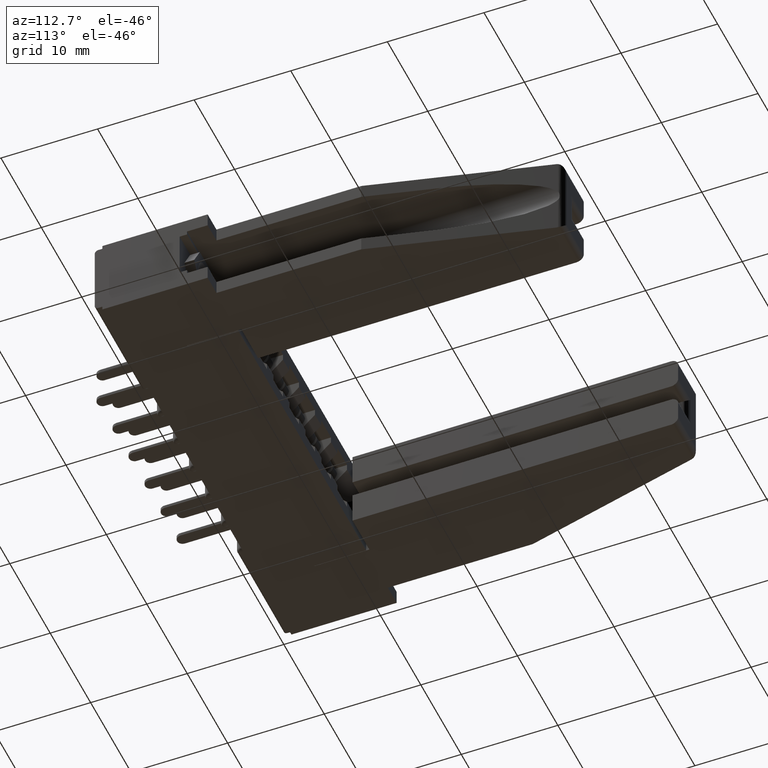
[diagram: clean part render]
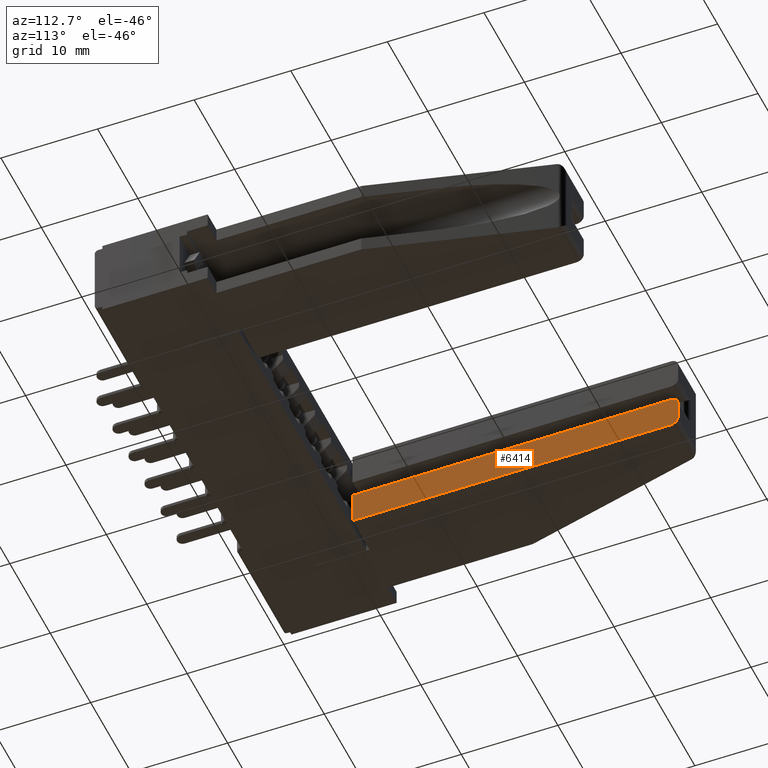
[diagram: same view with one face highlighted and labeled with its STEP entity id]
A machine part, auxiliary view. The second image highlights one B-rep face of the part: STEP entity #6414.
In plain terms, the highlighted planar face has unit normal (1, -0, 0).
Its self-contained STEP definition (entity closure, byte-faithful):
#72 = DIRECTION ( 'NONE',  ( 0.0000000000000000000, 1.000000000000000000, 0.0000000000000000000 ) ) ;
#83 = EDGE_CURVE ( 'NONE', #9670, #3092, #2033, .T. ) ;
#124 = DIRECTION ( 'NONE',  ( 1.000000000000000000, -5.146661630867112300E-017, 0.0000000000000000000 ) ) ;
#150 = CARTESIAN_POINT ( 'NONE',  ( 0.4610000000000000200, 0.2230000000000000300, -0.2070000000000001300 ) ) ;
#699 = VECTOR ( 'NONE', #2133, 39.37007874015748100 ) ;
#821 = CARTESIAN_POINT ( 'NONE',  ( 0.4610000000000000800, 1.519999999999999600, -0.3430000000000000300 ) ) ;
#908 = EDGE_CURVE ( 'NONE', #6297, #11340, #2952, .T. ) ;
#1144 = PLANE ( 'NONE',  #4469 ) ;
#1282 = CARTESIAN_POINT ( 'NONE',  ( 0.4610000000000000800, 1.550000000000000000, -0.2369999999999999900 ) ) ;
#1324 = LINE ( 'NONE', #150, #699 ) ;
#1633 = ORIENTED_EDGE ( 'NONE', *, *, #11972, .F. ) ;
#2033 = LINE ( 'NONE', #8854, #8134 ) ;
#2133 = DIRECTION ( 'NONE',  ( 5.146661630867112300E-017, 1.000000000000000000, 1.029332326173422500E-016 ) ) ;
#2694 = DIRECTION ( 'NONE',  ( 5.146661630867112300E-017, 1.000000000000000000, 0.0000000000000000000 ) ) ;
#2952 = LINE ( 'NONE', #3913, #7769 ) ;
#2987 = EDGE_CURVE ( 'NONE', #3092, #6297, #4495, .T. ) ;
#3000 = DIRECTION ( 'NONE',  ( 0.0000000000000000000, 0.0000000000000000000, 1.000000000000000000 ) ) ;
#3092 = VERTEX_POINT ( 'NONE', #821 ) ;
#3822 = CIRCLE ( 'NONE', #5248, 0.02999999999999995400 ) ;
#3913 = CARTESIAN_POINT ( 'NONE',  ( 0.4610000000000000800, 1.550000000000000000, -0.3430000000000000300 ) ) ;
#4312 = EDGE_CURVE ( 'NONE', #11340, #6290, #3822, .T. ) ;
#4469 = AXIS2_PLACEMENT_3D ( 'NONE', #9339, #7458, #8534 ) ;
#4495 = CIRCLE ( 'NONE', #10277, 0.02999999999999995400 ) ;
#4587 = VERTEX_POINT ( 'NONE', #5642 ) ;
#5122 = CARTESIAN_POINT ( 'NONE',  ( 0.4610000000000000800, 1.550000000000000000, -0.3130000000000000000 ) ) ;
#5248 = AXIS2_PLACEMENT_3D ( 'NONE', #9420, #124, #72 ) ;
#5556 = DIRECTION ( 'NONE',  ( 1.000000000000000000, -5.146661630867112300E-017, 0.0000000000000000000 ) ) ;
#5642 = CARTESIAN_POINT ( 'NONE',  ( 0.4610000000000000200, 0.2230000000000000300, -0.2070000000000001300 ) ) ;
#6290 = VERTEX_POINT ( 'NONE', #10398 ) ;
#6297 = VERTEX_POINT ( 'NONE', #5122 ) ;
#6414 = ADVANCED_FACE ( 'NONE', ( #9217 ), #1144, .T. ) ;
#7142 = CARTESIAN_POINT ( 'NONE',  ( 0.4610000000000000200, 0.2230000000000000300, -0.3430000000000000300 ) ) ;
#7458 = DIRECTION ( 'NONE',  ( 1.000000000000000000, -5.146661630867112300E-017, 0.0000000000000000000 ) ) ;
#7769 = VECTOR ( 'NONE', #10175, 39.37007874015748100 ) ;
#8134 = VECTOR ( 'NONE', #2694, 39.37007874015748100 ) ;
#8235 = EDGE_CURVE ( 'NONE', #4587, #6290, #1324, .T. ) ;
#8534 = DIRECTION ( 'NONE',  ( 5.146661630867112300E-017, 1.000000000000000000, 0.0000000000000000000 ) ) ;
#8738 = CARTESIAN_POINT ( 'NONE',  ( 0.4610000000000000800, 1.520000000000000200, -0.3130000000000000000 ) ) ;
#8854 = CARTESIAN_POINT ( 'NONE',  ( 0.4610000000000000200, 0.2230000000000000300, -0.3430000000000000300 ) ) ;
#8917 = LINE ( 'NONE', #7142, #11304 ) ;
#9164 = CARTESIAN_POINT ( 'NONE',  ( 0.4610000000000000200, 0.2230000000000000300, -0.3430000000000000300 ) ) ;
#9217 = FACE_OUTER_BOUND ( 'NONE', #12277, .T. ) ;
#9339 = CARTESIAN_POINT ( 'NONE',  ( 0.4610000000000000200, 0.2230000000000000300, -0.3430000000000000300 ) ) ;
#9420 = CARTESIAN_POINT ( 'NONE',  ( 0.4610000000000000800, 1.520000000000000200, -0.2369999999999999900 ) ) ;
#9670 = VERTEX_POINT ( 'NONE', #9164 ) ;
#10175 = DIRECTION ( 'NONE',  ( 0.0000000000000000000, 0.0000000000000000000, 1.000000000000000000 ) ) ;
#10277 = AXIS2_PLACEMENT_3D ( 'NONE', #8738, #5556, #10729 ) ;
#10398 = CARTESIAN_POINT ( 'NONE',  ( 0.4610000000000000800, 1.519999999999999600, -0.2070000000000000200 ) ) ;
#10481 = ORIENTED_EDGE ( 'NONE', *, *, #908, .T. ) ;
#10729 = DIRECTION ( 'NONE',  ( 0.0000000000000000000, 1.000000000000000000, 0.0000000000000000000 ) ) ;
#11176 = ORIENTED_EDGE ( 'NONE', *, *, #8235, .F. ) ;
#11304 = VECTOR ( 'NONE', #3000, 39.37007874015748100 ) ;
#11340 = VERTEX_POINT ( 'NONE', #1282 ) ;
#11450 = ORIENTED_EDGE ( 'NONE', *, *, #4312, .T. ) ;
#11972 = EDGE_CURVE ( 'NONE', #9670, #4587, #8917, .T. ) ;
#12277 = EDGE_LOOP ( 'NONE', ( #12420, #12514, #10481, #11450, #11176, #1633 ) ) ;
#12420 = ORIENTED_EDGE ( 'NONE', *, *, #83, .T. ) ;
#12514 = ORIENTED_EDGE ( 'NONE', *, *, #2987, .T. ) ;